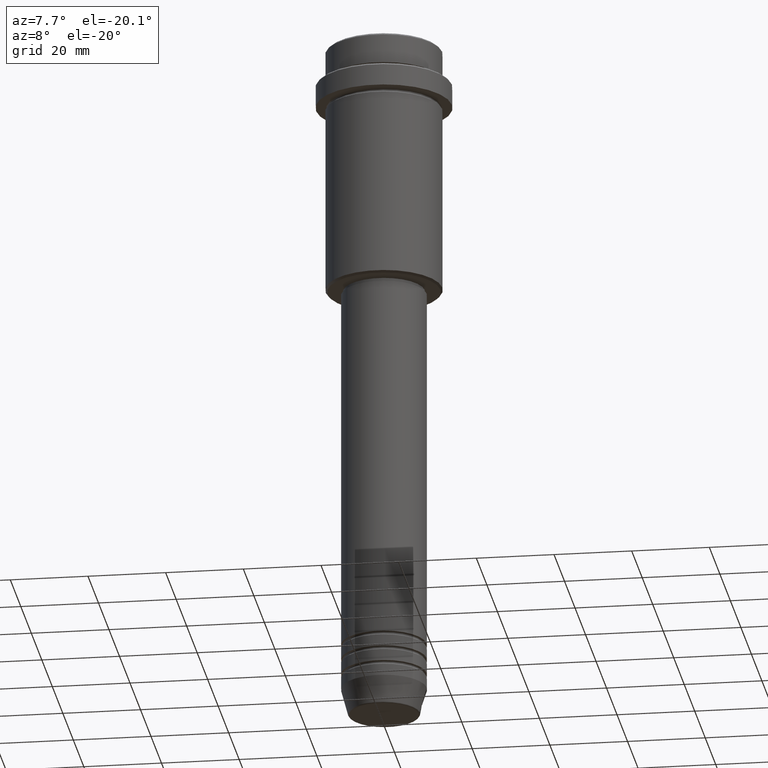
[diagram: clean part render]
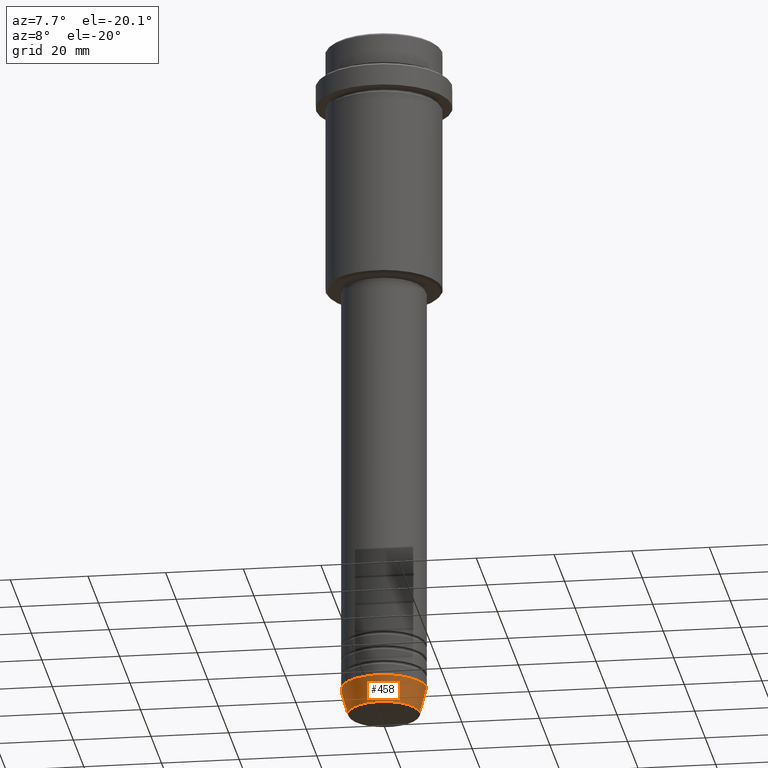
[diagram: same view with one face highlighted and labeled with its STEP entity id]
A machine part, auxiliary view. The second image highlights one B-rep face of the part: STEP entity #458.
In plain terms, the highlighted conical surface has half-angle 15 deg.
Its self-contained STEP definition (entity closure, byte-faithful):
#57 = DIRECTION ( 'NONE',  ( 1.000000000000000000, 0.000000000000000000, 0.000000000000000000 ) ) ;
#59 = AXIS2_PLACEMENT_3D ( 'NONE', #578, #693, #57 ) ;
#117 = FACE_OUTER_BOUND ( 'NONE', #475, .T. ) ;
#255 = DIRECTION ( 'NONE',  ( 0.2588190451025213501, 0.000000000000000000, 0.9659258262890680902 ) ) ;
#322 = CARTESIAN_POINT ( 'NONE',  ( -9.223655072137194821, 1.238341722557647596E-15, -179.6294095225512422 ) ) ;
#329 = ORIENTED_EDGE ( 'NONE', *, *, #479, .T. ) ;
#344 = ORIENTED_EDGE ( 'NONE', *, *, #1033, .F. ) ;
#439 = VERTEX_POINT ( 'NONE', #322 ) ;
#458 = ADVANCED_FACE ( 'NONE', ( #117 ), #566, .T. ) ;
#475 = EDGE_LOOP ( 'NONE', ( #1066, #714, #329, #344 ) ) ;
#477 = VECTOR ( 'NONE', #255, 1000.000000000000000 ) ;
#479 = EDGE_CURVE ( 'NONE', #489, #1012, #1233, .T. ) ;
#484 = CARTESIAN_POINT ( 'NONE',  ( 11.00000000000000000, 0.000000000000000000, -173.0000000000000284 ) ) ;
#489 = VERTEX_POINT ( 'NONE', #773 ) ;
#566 = CONICAL_SURFACE ( 'NONE', #730, 11.00000000000000000, 0.2617993877991500740 ) ;
#578 = CARTESIAN_POINT ( 'NONE',  ( 0.000000000000000000, 0.000000000000000000, -179.6294095225512422 ) ) ;
#693 = DIRECTION ( 'NONE',  ( -0.000000000000000000, -0.000000000000000000, 1.000000000000000000 ) ) ;
#714 = ORIENTED_EDGE ( 'NONE', *, *, #987, .T. ) ;
#724 = VECTOR ( 'NONE', #961, 1000.000000000000000 ) ;
#730 = AXIS2_PLACEMENT_3D ( 'NONE', #1205, #885, #989 ) ;
#744 = CARTESIAN_POINT ( 'NONE',  ( -11.00000000000000000, 1.347111479062088405E-15, -173.0000000000000284 ) ) ;
#773 = CARTESIAN_POINT ( 'NONE',  ( 9.223655072137194821, 0.000000000000000000, -179.6294095225512422 ) ) ;
#799 = CARTESIAN_POINT ( 'NONE',  ( -11.00000000000000000, 1.347111479062088405E-15, -173.0000000000000284 ) ) ;
#818 = DIRECTION ( 'NONE',  ( -0.000000000000000000, -0.000000000000000000, 1.000000000000000000 ) ) ;
#825 = EDGE_CURVE ( 'NONE', #439, #1007, #1280, .T. ) ;
#885 = DIRECTION ( 'NONE',  ( -0.000000000000000000, -0.000000000000000000, 1.000000000000000000 ) ) ;
#961 = DIRECTION ( 'NONE',  ( -0.2588190451025213501, 3.169619151431772337E-17, 0.9659258262890680902 ) ) ;
#987 = EDGE_CURVE ( 'NONE', #439, #489, #1245, .T. ) ;
#989 = DIRECTION ( 'NONE',  ( 1.000000000000000000, 0.000000000000000000, 0.000000000000000000 ) ) ;
#1004 = CARTESIAN_POINT ( 'NONE',  ( 11.00000000000000000, 0.000000000000000000, -173.0000000000000284 ) ) ;
#1007 = VERTEX_POINT ( 'NONE', #799 ) ;
#1012 = VERTEX_POINT ( 'NONE', #484 ) ;
#1033 = EDGE_CURVE ( 'NONE', #1007, #1012, #1043, .T. ) ;
#1043 = CIRCLE ( 'NONE', #1291, 11.00000000000000000 ) ;
#1066 = ORIENTED_EDGE ( 'NONE', *, *, #825, .F. ) ;
#1140 = DIRECTION ( 'NONE',  ( 1.000000000000000000, 0.000000000000000000, 0.000000000000000000 ) ) ;
#1205 = CARTESIAN_POINT ( 'NONE',  ( 0.000000000000000000, 0.000000000000000000, -173.0000000000000284 ) ) ;
#1233 = LINE ( 'NONE', #1004, #477 ) ;
#1243 = CARTESIAN_POINT ( 'NONE',  ( 0.000000000000000000, 0.000000000000000000, -173.0000000000000284 ) ) ;
#1245 = CIRCLE ( 'NONE', #59, 9.223655072137194821 ) ;
#1280 = LINE ( 'NONE', #744, #724 ) ;
#1291 = AXIS2_PLACEMENT_3D ( 'NONE', #1243, #818, #1140 ) ;